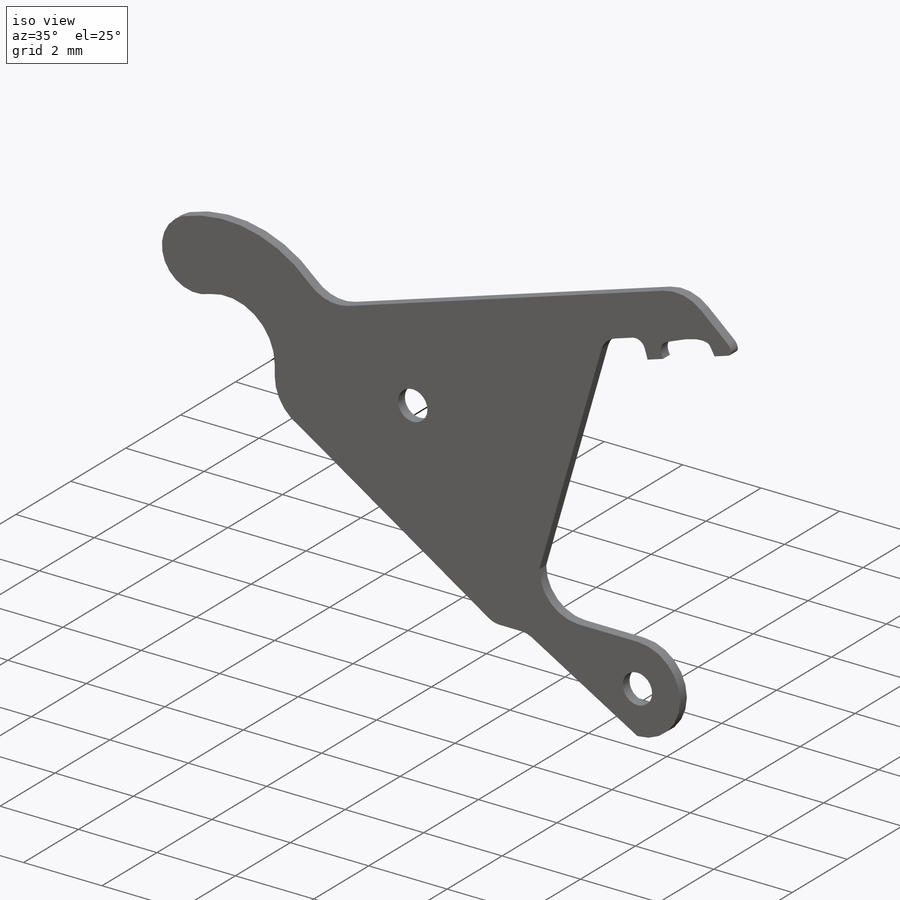
[diagram: iso view]
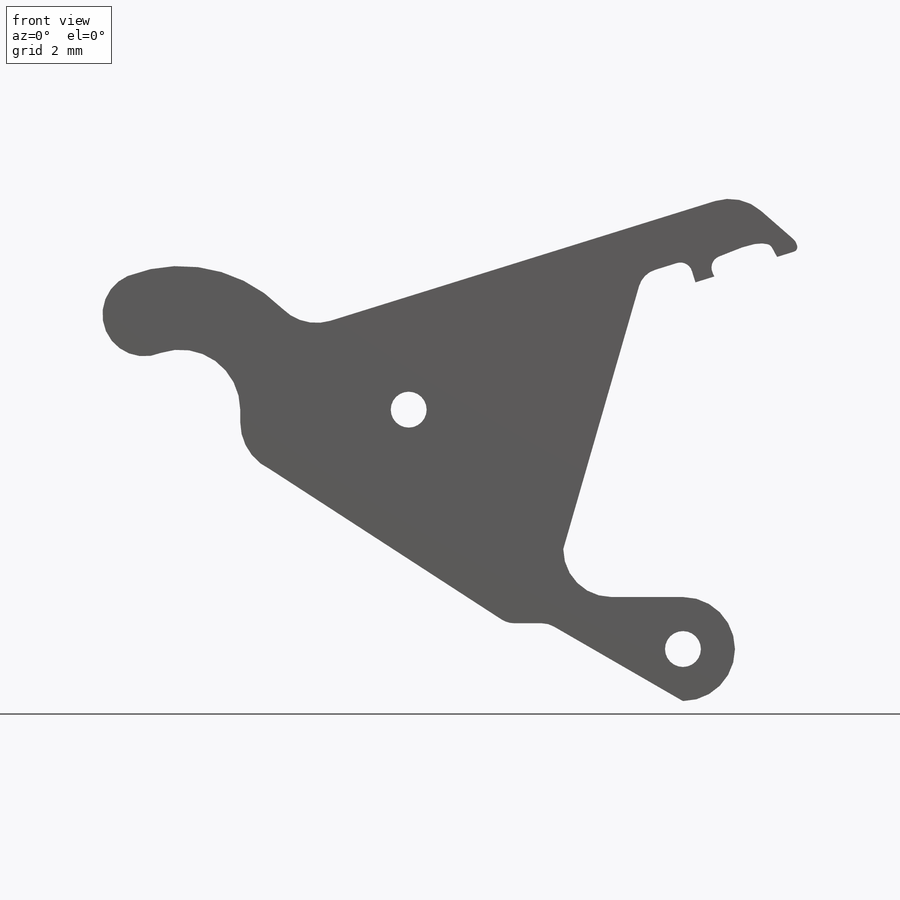
[diagram: front view]
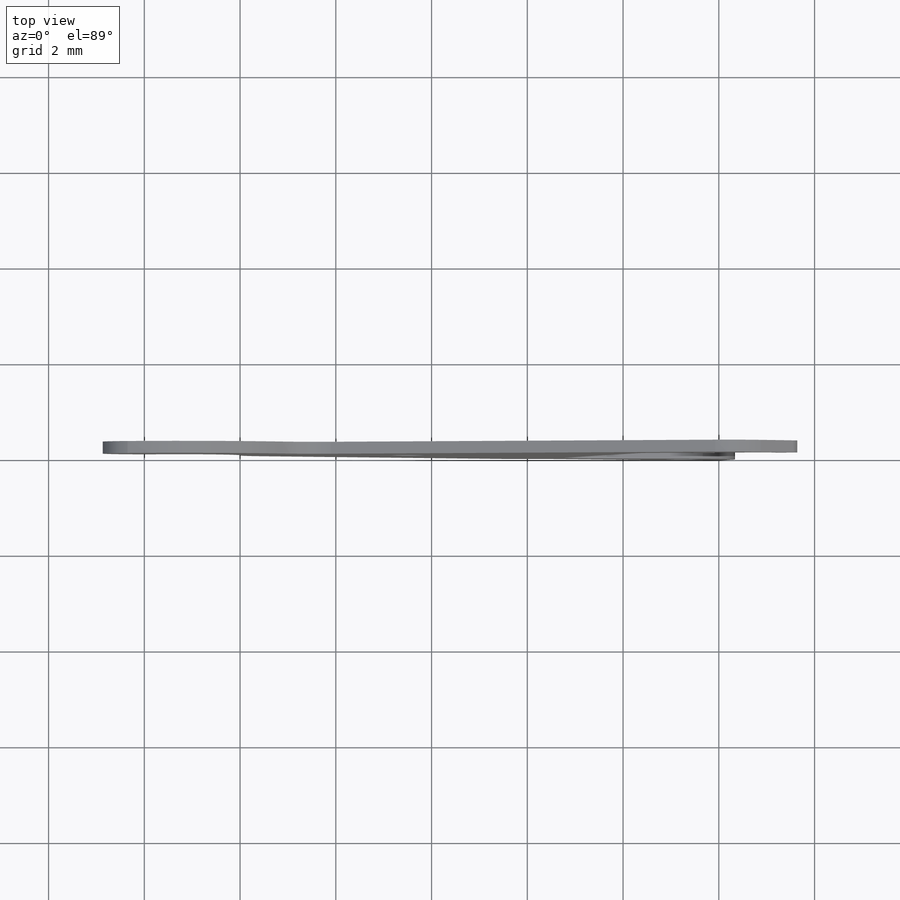
[diagram: top view]
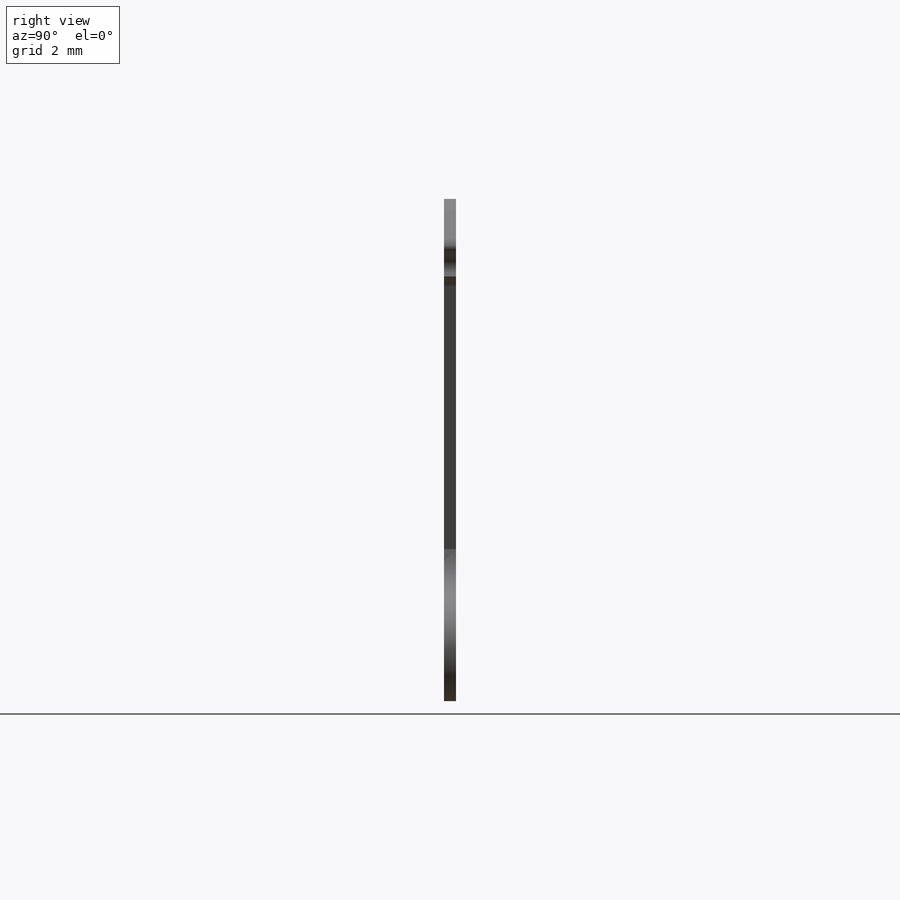
[diagram: right view]
SOLIDWORKS PART (.sldprt)
format: sldprt  version: not decoded by parser v0  size: 287,744 bytes
history: native  units: mm
features: sketch x4, plane x3, sheet_metal_op x2, thread x2, material x1, hole x1 + 2 further entries (+8 scaffold rows collapsed)
feature tree (23):
  scaffold x8  (default folders/planes/origin — collapsed)
  material  "Material <sin especificar>"
  plane  "Alzado"
  plane  "Planta"
  plane  "Vista lateral"
  sketch  "Croquis1"  dims[c1.D1=3.0mm c1.D2=~1.252599mm c1.D3=0.875mm c1.D4=1.0mm c1.D24=1.0mm c1.D25=0.5mm c1.D26=0.25mm c1.D5=1.0mm c1.D11=1.0mm c1.D27=0.25mm c1.D20=0.25mm c2.D25=0.25mm c2.D27=0.1mm c2.D6=0.25mm c2.D5=0.5mm c2.D4=0.5mm c3.D6=0.25mm c3.D7=1.0mm c3.D5=~10.447795mm c4.D5=~4.987564deg c5.D5=~261.799388mm c5.D6=1.0mm c5.D7=1.5mm c5.D8=10.0mm c5.D9=5.0mm c5.D10=1.25mm c5.D11=5.0mm c5.D12=2.5mm c5.D13=~785.398163mm c5.D14=~523.598776mm c5.D15=3.25mm c5.D16=1.0mm c5.D17=~436.332313mm c5.D18=5.0mm c5.D19=0.75mm c5.D20=3.5mm c5.D21=~785.398163mm c5.D22=5.0mm c5.D23=2.5mm c6.D9=4.5mm c6.D10=1.25mm c6.D11=~2.503272mm c6.D21=0.5mm c6.D26=1.25mm c6.D28=~8.499681mm c6.D18=8.0mm c6.D7=0.5mm c7.D26=2.0mm c7.D20=0.1mm c7.D27=0.75mm c8.D20=1.5mm]
  sheet_metal_op  "Chapa metálica1"
  sheet_metal_op  "Brida base1"
  hole  "Taladro roscado M1x0.251"  Depth=0.25mm  [1 undecoded]
  sketch  "Croquis4"  dims[c1.D1=10.5mm c1.D2=5.0mm c2.D1=~4.771573mm c2.D2=~5.728427mm c2.D3=5.0mm c3.D2=10.5mm]
  sketch  "Croquis3"  dims[hole-wizard template sketch: 44 standard entries collapsed; hole parameters kept: c7.Diámetro de perforador para roscar hasta el siguiente=0.75mm c7.Profundidad de perforador para roscar hasta el siguiente=0.25mm]
  thread  "Rosca de taladro1"  Diameter=1mm  [1 undecoded]
  thread  "Rosca de taladro2"  Diameter=1mm  [1 undecoded]
  "Chapa desplegada1"
  sketch  "Líneas de pliegue1"
  "Transformación de croquis1"
decode coverage: 6 of 9 modeling features carry decoded parameters; 2 rows unclassified (native names shown)
note: ~ marks probable driven/reference dimensions
note: 3 parameter values undecoded
note: suppression state not decoded; provenance and decode notes live in map.json
